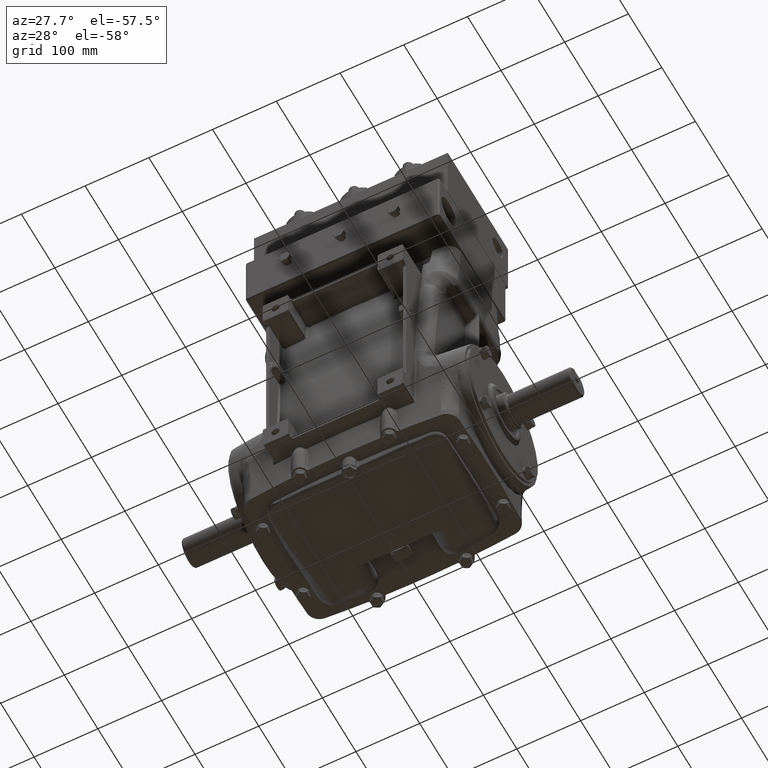
[diagram: clean part render]
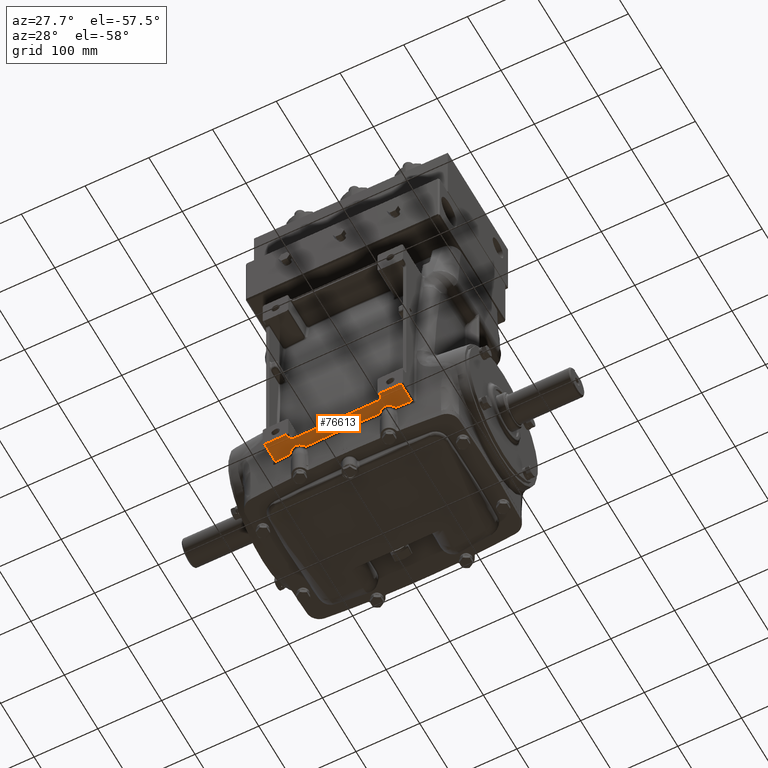
[diagram: same view with one face highlighted and labeled with its STEP entity id]
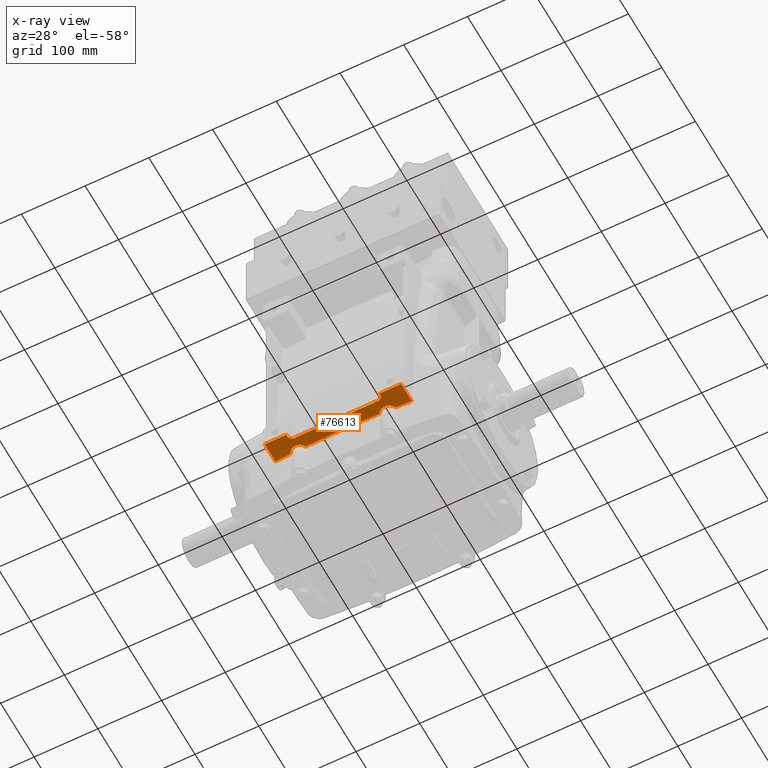
[diagram: x-ray of the same camera — body ghosted, the highlighted face saturated]
A machine part, auxiliary view. The second image highlights one B-rep face of the part: STEP entity #76613.
The next image is the same camera in x-ray: the body ghosted, the highlighted face saturated — about 0% of this face is hidden behind the body in this view.
In plain terms, the highlighted planar face has unit normal (0, 0, 1).
Its self-contained STEP definition (entity closure, byte-faithful):
#216 = CARTESIAN_POINT ( 'NONE',  ( 3.236655298270829206, -4.702334414184210054, -2.755905511811023612 ) ) ;
#1011 = CARTESIAN_POINT ( 'NONE',  ( 0.7636004615072039536, -4.776144263560494707, -2.755905511811023612 ) ) ;
#1369 = ORIENTED_EDGE ( 'NONE', *, *, #81780, .T. ) ;
#2016 = AXIS2_PLACEMENT_3D ( 'NONE', #15674, #41231, #23084 ) ;
#2257 = VECTOR ( 'NONE', #28576, 39.37007874015748143 ) ;
#2431 = ORIENTED_EDGE ( 'NONE', *, *, #42258, .T. ) ;
#2462 = CARTESIAN_POINT ( 'NONE',  ( -2.642547059220229144, -5.519561789034340471, -2.755905511811024056 ) ) ;
#3310 = CARTESIAN_POINT ( 'NONE',  ( 3.887401819451026697, -4.670398074839743785, -2.755905511811023612 ) ) ;
#3679 = CARTESIAN_POINT ( 'NONE',  ( -2.874015748031497619, -5.708661417322118403, -2.755905511811023612 ) ) ;
#3855 = VERTEX_POINT ( 'NONE', #48241 ) ;
#4096 = CARTESIAN_POINT ( 'NONE',  ( -2.582039429641904249, -5.511811023621509875, -2.755905511811023612 ) ) ;
#4266 = CARTESIAN_POINT ( 'NONE',  ( 2.874015748031497619, -5.905511811023622215, -2.755905511811023612 ) ) ;
#4307 = CARTESIAN_POINT ( 'NONE',  ( 0.000000000000000000, -4.776144263560494707, -2.755905511811024056 ) ) ;
#5046 = CARTESIAN_POINT ( 'NONE',  ( 2.582039429641904249, -5.511811023621509875, -2.755905511811023612 ) ) ;
#5869 = CARTESIAN_POINT ( 'NONE',  ( 2.612686874028978590, -5.513360750186181214, -2.755905511811023612 ) ) ;
#6145 = DIRECTION ( 'NONE',  ( 0.000000000000000000, 0.000000000000000000, 1.000000000000000000 ) ) ;
#6950 = EDGE_CURVE ( 'NONE', #75434, #13281, #36488, .T. ) ;
#8889 = ORIENTED_EDGE ( 'NONE', *, *, #6950, .F. ) ;
#10978 = EDGE_CURVE ( 'NONE', #75020, #60277, #62916, .T. ) ;
#11841 = VECTOR ( 'NONE', #62879, 39.37007874015748143 ) ;
#12173 = CARTESIAN_POINT ( 'NONE',  ( -4.330708661417324912, -5.511811023621509875, -2.755905511811023612 ) ) ;
#12245 = VECTOR ( 'NONE', #56291, 39.37007874015748143 ) ;
#12344 = PLANE ( 'NONE',  #23560 ) ;
#12747 = ORIENTED_EDGE ( 'NONE', *, *, #59141, .F. ) ;
#12819 = LINE ( 'NONE', #13622, #62135 ) ;
#12832 = EDGE_CURVE ( 'NONE', #60277, #25291, #28732, .T. ) ;
#13281 = VERTEX_POINT ( 'NONE', #4266 ) ;
#13467 = VERTEX_POINT ( 'NONE', #40530 ) ;
#13622 = CARTESIAN_POINT ( 'NONE',  ( -2.874015748031497619, 19685.03937007874265, -2.755905511811023612 ) ) ;
#15001 = VECTOR ( 'NONE', #68851, 39.37007874015748143 ) ;
#15674 = CARTESIAN_POINT ( 'NONE',  ( -2.755905511811022723, -4.527559055118111075, -2.755905511811023612 ) ) ;
#15966 = ORIENTED_EDGE ( 'NONE', *, *, #10978, .T. ) ;
#16185 = CARTESIAN_POINT ( 'NONE',  ( -4.330708661417324912, -5.905511811023622215, -2.755905511811023612 ) ) ;
#16668 = EDGE_CURVE ( 'NONE', #75020, #75434, #74539, .T. ) ;
#17041 = ORIENTED_EDGE ( 'NONE', *, *, #57003, .T. ) ;
#18355 = LINE ( 'NONE', #36074, #28345 ) ;
#18969 = CARTESIAN_POINT ( 'NONE',  ( -3.236655298270829206, -4.702334414184210054, -2.755905511811023612 ) ) ;
#19780 = EDGE_CURVE ( 'NONE', #40987, #26983, #50402, .T. ) ;
#20649 = DIRECTION ( 'NONE',  ( 0.000000000000000000, -1.000000000000000000, 0.000000000000000000 ) ) ;
#22290 = CARTESIAN_POINT ( 'NONE',  ( -2.635126052522544615, -5.517751333018247273, -2.755905511811022723 ) ) ;
#22915 = CARTESIAN_POINT ( 'NONE',  ( -1.527002142817031949, -4.763823141112801807, -2.755905511811023612 ) ) ;
#23084 = DIRECTION ( 'NONE',  ( 1.000000000000000000, 0.000000000000000000, 0.000000000000000000 ) ) ;
#23560 = AXIS2_PLACEMENT_3D ( 'NONE', #56892, #6145, #56475 ) ;
#24111 = CARTESIAN_POINT ( 'NONE',  ( 2.874015748031497619, 19685.03937007874265, -2.755905511811023612 ) ) ;
#24461 = CARTESIAN_POINT ( 'NONE',  ( 2.700338150432132878, -5.540231194186152841, -2.755905511811024500 ) ) ;
#24733 = FACE_OUTER_BOUND ( 'NONE', #41343, .T. ) ;
#25291 = VERTEX_POINT ( 'NONE', #55275 ) ;
#26100 = EDGE_CURVE ( 'NONE', #26983, #32949, #37662, .T. ) ;
#26145 = CARTESIAN_POINT ( 'NONE',  ( -2.874015748031497619, -5.905511811023622215, -2.755905511811023612 ) ) ;
#26905 = VERTEX_POINT ( 'NONE', #48079 ) ;
#26983 = VERTEX_POINT ( 'NONE', #37361 ) ;
#27037 = CARTESIAN_POINT ( 'NONE',  ( 2.290205283179107987, -4.739195725782758828, -2.755905511811023612 ) ) ;
#27049 = CIRCLE ( 'NONE', #62627, 0.5115337557950937475 ) ;
#28110 = CARTESIAN_POINT ( 'NONE',  ( 4.212598425196851792, -4.651067043400818335, -2.755905511811023612 ) ) ;
#28345 = VECTOR ( 'NONE', #67423, 39.37007874015748143 ) ;
#28523 = CARTESIAN_POINT ( 'NONE',  ( 3.562087326458517111, -4.687484964510351126, -2.755905511811023612 ) ) ;
#28540 = CARTESIAN_POINT ( 'NONE',  ( -4.212598425196851792, 19685.03937007874265, -2.755905511811023612 ) ) ;
#28576 = DIRECTION ( 'NONE',  ( -1.000000000000000000, -0.000000000000000000, -0.000000000000000000 ) ) ;
#28732 = B_SPLINE_CURVE_WITH_KNOTS ( 'NONE', 3,
 ( #4096, #79278, #72231, #22290, #2462, #60227, #47436, #41246, #40029, #59814, #65207, #3679 ),
 .UNSPECIFIED., .F., .F.,
 ( 4, 2, 2, 2, 2, 4 ),
 ( 2.281535328170445040E-15, 0.001161146787051223509, 0.001741720180575686552, 0.002322293574100149378, 0.004644587148198060962, 0.009289174296393917091 ),
 .UNSPECIFIED. ) ;
#30678 = CARTESIAN_POINT ( 'NONE',  ( 2.657274878522154271, -5.523857386598908903, -2.755905511811024500 ) ) ;
#31078 = CARTESIAN_POINT ( 'NONE',  ( 2.726524204150164277, -5.555865420700117241, -2.755905511811024056 ) ) ;
#32864 = CARTESIAN_POINT ( 'NONE',  ( -4.212598425196851792, -4.651067043400818335, -2.755905511811023612 ) ) ;
#32949 = VERTEX_POINT ( 'NONE', #71260 ) ;
#34081 = EDGE_CURVE ( 'NONE', #59694, #34807, #27049, .T. ) ;
#34807 = VERTEX_POINT ( 'NONE', #48743 ) ;
#36074 = CARTESIAN_POINT ( 'NONE',  ( 4.212598425196851792, 19685.03937007874265, -2.755905511811023612 ) ) ;
#36293 = EDGE_CURVE ( 'NONE', #81441, #3855, #59102, .T. ) ;
#36488 = LINE ( 'NONE', #24111, #11841 ) ;
#36857 = CARTESIAN_POINT ( 'NONE',  ( 2.635126052522544615, -5.517751333018247273, -2.755905511811022723 ) ) ;
#37361 = CARTESIAN_POINT ( 'NONE',  ( -3.236655298270829206, -4.702334414184210054, -2.755905511811023612 ) ) ;
#37481 = B_SPLINE_CURVE_WITH_KNOTS ( 'NONE', 3,
 ( #79496, #22915, #60877, #4307 ),
 .UNSPECIFIED., .F., .F.,
 ( 4, 4 ),
 ( 1.387778780781445676E-17, 0.05817878418724611173 ),
 .UNSPECIFIED. ) ;
#37528 = CARTESIAN_POINT ( 'NONE',  ( -3.562087326458517111, -4.687484964510351126, -2.755905511811023612 ) ) ;
#37662 = CIRCLE ( 'NONE', #2016, 0.5115337557950937475 ) ;
#38582 = DIRECTION ( 'NONE',  ( -0.000000000000000000, -0.000000000000000000, -1.000000000000000000 ) ) ;
#39356 = B_SPLINE_CURVE_WITH_KNOTS ( 'NONE', 3,
 ( #28110, #3310, #28523, #61924 ),
 .UNSPECIFIED., .F., .F.,
 ( 4, 4 ),
 ( 3.333559025893249444E-16, 0.02482313463237730000 ),
 .UNSPECIFIED. ) ;
#39804 = CARTESIAN_POINT ( 'NONE',  ( 1.527002142817031949, -4.763823141112801807, -2.755905511811023612 ) ) ;
#40029 = CARTESIAN_POINT ( 'NONE',  ( -2.726524204150164277, -5.555865420700117241, -2.755905511811024056 ) ) ;
#40211 = CARTESIAN_POINT ( 'NONE',  ( 2.582039429641904249, -5.511811023621509875, -2.755905511811023612 ) ) ;
#40530 = CARTESIAN_POINT ( 'NONE',  ( 0.000000000000000000, -4.776144263560494707, -2.755905511811024056 ) ) ;
#40987 = VERTEX_POINT ( 'NONE', #32864 ) ;
#41231 = DIRECTION ( 'NONE',  ( 0.000000000000000000, 0.000000000000000000, 1.000000000000000000 ) ) ;
#41246 = CARTESIAN_POINT ( 'NONE',  ( -2.700338150432132878, -5.540231194186152841, -2.755905511811024500 ) ) ;
#41343 = EDGE_LOOP ( 'NONE', ( #55630, #2431, #53128, #78543, #76430, #70968, #12747, #8889, #63989, #15966, #62124, #1369, #74131, #17041, #45501 ) ) ;
#42258 = EDGE_CURVE ( 'NONE', #32949, #13467, #37481, .T. ) ;
#42813 = EDGE_CURVE ( 'NONE', #26905, #59694, #39356, .T. ) ;
#44074 = CARTESIAN_POINT ( 'NONE',  ( 4.330708661417324912, -5.905511811023622215, -2.755905511811023612 ) ) ;
#45501 = ORIENTED_EDGE ( 'NONE', *, *, #19780, .T. ) ;
#47436 = CARTESIAN_POINT ( 'NONE',  ( -2.664605747772793798, -5.526354586598208662, -2.755905511811023612 ) ) ;
#48079 = CARTESIAN_POINT ( 'NONE',  ( 4.212598425196851792, -4.651067043400818335, -2.755905511811023612 ) ) ;
#48241 = CARTESIAN_POINT ( 'NONE',  ( -4.212598425196851792, -5.905511811023622215, -2.755905511811023612 ) ) ;
#48743 = CARTESIAN_POINT ( 'NONE',  ( 2.290205283179107987, -4.739195725782758828, -2.755905511811023612 ) ) ;
#50402 = B_SPLINE_CURVE_WITH_KNOTS ( 'NONE', 3,
 ( #51107, #69696, #37528, #18969 ),
 .UNSPECIFIED., .F., .F.,
 ( 4, 4 ),
 ( 3.333559025893249444E-16, 0.02482313463237730000 ),
 .UNSPECIFIED. ) ;
#51107 = CARTESIAN_POINT ( 'NONE',  ( -4.212598425196851792, -4.651067043400818335, -2.755905511811023612 ) ) ;
#53128 = ORIENTED_EDGE ( 'NONE', *, *, #81154, .F. ) ;
#55275 = CARTESIAN_POINT ( 'NONE',  ( -2.874015748031497619, -5.708661417322118403, -2.755905511811023612 ) ) ;
#55630 = ORIENTED_EDGE ( 'NONE', *, *, #26100, .T. ) ;
#55794 = CARTESIAN_POINT ( 'NONE',  ( 2.597494301542617290, -5.511811023622049888, -2.755905511811024500 ) ) ;
#56205 = CARTESIAN_POINT ( 'NONE',  ( 2.799321988084936486, -5.612481343199264394, -2.755905511811022723 ) ) ;
#56291 = DIRECTION ( 'NONE',  ( -1.000000000000000000, 0.000000000000000000, 0.000000000000000000 ) ) ;
#56475 = DIRECTION ( 'NONE',  ( 1.000000000000000000, 0.000000000000000000, -0.000000000000000000 ) ) ;
#56892 = CARTESIAN_POINT ( 'NONE',  ( -4.330708661417324912, 19685.03937007874265, -2.755905511811023612 ) ) ;
#57003 = EDGE_CURVE ( 'NONE', #3855, #40987, #71877, .T. ) ;
#57825 = CARTESIAN_POINT ( 'NONE',  ( 2.836690024839465529, -5.660474196191884744, -2.755905511811023612 ) ) ;
#59102 = LINE ( 'NONE', #16185, #2257 ) ;
#59141 = EDGE_CURVE ( 'NONE', #13281, #66940, #73856, .T. ) ;
#59694 = VERTEX_POINT ( 'NONE', #216 ) ;
#59814 = CARTESIAN_POINT ( 'NONE',  ( -2.799321988084936486, -5.612481343199264394, -2.755905511811022723 ) ) ;
#60227 = CARTESIAN_POINT ( 'NONE',  ( -2.657274878522154271, -5.523857386598908903, -2.755905511811024500 ) ) ;
#60277 = VERTEX_POINT ( 'NONE', #74571 ) ;
#60877 = CARTESIAN_POINT ( 'NONE',  ( -0.7636004615072039536, -4.776144263560494707, -2.755905511811023612 ) ) ;
#61924 = CARTESIAN_POINT ( 'NONE',  ( 3.236655298270829206, -4.702334414184210054, -2.755905511811023612 ) ) ;
#62018 = CARTESIAN_POINT ( 'NONE',  ( 2.642547059220229144, -5.519561789034340471, -2.755905511811024056 ) ) ;
#62124 = ORIENTED_EDGE ( 'NONE', *, *, #12832, .T. ) ;
#62135 = VECTOR ( 'NONE', #20649, 39.37007874015748143 ) ;
#62627 = AXIS2_PLACEMENT_3D ( 'NONE', #62947, #38582, #70761 ) ;
#62666 = EDGE_CURVE ( 'NONE', #66940, #26905, #18355, .T. ) ;
#62879 = DIRECTION ( 'NONE',  ( 0.000000000000000000, -1.000000000000000000, 0.000000000000000000 ) ) ;
#62916 = LINE ( 'NONE', #12173, #12245 ) ;
#62947 = CARTESIAN_POINT ( 'NONE',  ( 2.755905511811022723, -4.527559055118111075, -2.755905511811023612 ) ) ;
#63989 = ORIENTED_EDGE ( 'NONE', *, *, #16668, .F. ) ;
#65207 = CARTESIAN_POINT ( 'NONE',  ( -2.836690024839465529, -5.660474196191884744, -2.755905511811023612 ) ) ;
#65261 = DIRECTION ( 'NONE',  ( -0.000000000000000000, 1.000000000000000000, -0.000000000000000000 ) ) ;
#66940 = VERTEX_POINT ( 'NONE', #77790 ) ;
#67423 = DIRECTION ( 'NONE',  ( -0.000000000000000000, 1.000000000000000000, -0.000000000000000000 ) ) ;
#68851 = DIRECTION ( 'NONE',  ( 1.000000000000000000, -0.000000000000000000, -0.000000000000000000 ) ) ;
#69376 = CARTESIAN_POINT ( 'NONE',  ( 2.874015748031497619, -5.708661417322118403, -2.755905511811023612 ) ) ;
#69696 = CARTESIAN_POINT ( 'NONE',  ( -3.887401819451026697, -4.670398074839743785, -2.755905511811023612 ) ) ;
#70761 = DIRECTION ( 'NONE',  ( -1.000000000000000000, 0.000000000000000000, 0.000000000000000000 ) ) ;
#70968 = ORIENTED_EDGE ( 'NONE', *, *, #62666, .F. ) ;
#71039 = CARTESIAN_POINT ( 'NONE',  ( 2.874015748031497619, -5.708661417322118403, -2.755905511811023612 ) ) ;
#71260 = CARTESIAN_POINT ( 'NONE',  ( -2.290205283179107987, -4.739195725782758828, -2.755905511811023612 ) ) ;
#71877 = LINE ( 'NONE', #28540, #73988 ) ;
#72231 = CARTESIAN_POINT ( 'NONE',  ( -2.612686874028978590, -5.513360750186181214, -2.755905511811023612 ) ) ;
#73856 = LINE ( 'NONE', #44074, #15001 ) ;
#73988 = VECTOR ( 'NONE', #65261, 39.37007874015748143 ) ;
#74131 = ORIENTED_EDGE ( 'NONE', *, *, #36293, .T. ) ;
#74247 = B_SPLINE_CURVE_WITH_KNOTS ( 'NONE', 3,
 ( #27037, #39804, #1011, #76186 ),
 .UNSPECIFIED., .F., .F.,
 ( 4, 4 ),
 ( 1.387778780781445676E-17, 0.05817878418724611173 ),
 .UNSPECIFIED. ) ;
#74539 = B_SPLINE_CURVE_WITH_KNOTS ( 'NONE', 3,
 ( #5046, #55794, #5869, #36857, #62018, #30678, #81036, #24461, #31078, #56205, #57825, #71039 ),
 .UNSPECIFIED., .F., .F.,
 ( 4, 2, 2, 2, 2, 4 ),
 ( 2.281535328170445040E-15, 0.001161146787051223509, 0.001741720180575686552, 0.002322293574100149378, 0.004644587148198060962, 0.009289174296393917091 ),
 .UNSPECIFIED. ) ;
#74571 = CARTESIAN_POINT ( 'NONE',  ( -2.582039429641904249, -5.511811023621509875, -2.755905511811023612 ) ) ;
#75020 = VERTEX_POINT ( 'NONE', #40211 ) ;
#75434 = VERTEX_POINT ( 'NONE', #69376 ) ;
#76186 = CARTESIAN_POINT ( 'NONE',  ( 0.000000000000000000, -4.776144263560494707, -2.755905511811024056 ) ) ;
#76430 = ORIENTED_EDGE ( 'NONE', *, *, #42813, .F. ) ;
#76613 = ADVANCED_FACE ( 'NONE', ( #24733 ), #12344, .F. ) ;
#77790 = CARTESIAN_POINT ( 'NONE',  ( 4.212598425196851792, -5.905511811023622215, -2.755905511811023612 ) ) ;
#78543 = ORIENTED_EDGE ( 'NONE', *, *, #34081, .F. ) ;
#79278 = CARTESIAN_POINT ( 'NONE',  ( -2.597494301542617290, -5.511811023622049888, -2.755905511811024500 ) ) ;
#79496 = CARTESIAN_POINT ( 'NONE',  ( -2.290205283179107987, -4.739195725782758828, -2.755905511811023612 ) ) ;
#81036 = CARTESIAN_POINT ( 'NONE',  ( 2.664605747772793798, -5.526354586598208662, -2.755905511811023612 ) ) ;
#81154 = EDGE_CURVE ( 'NONE', #34807, #13467, #74247, .T. ) ;
#81441 = VERTEX_POINT ( 'NONE', #26145 ) ;
#81780 = EDGE_CURVE ( 'NONE', #25291, #81441, #12819, .T. ) ;